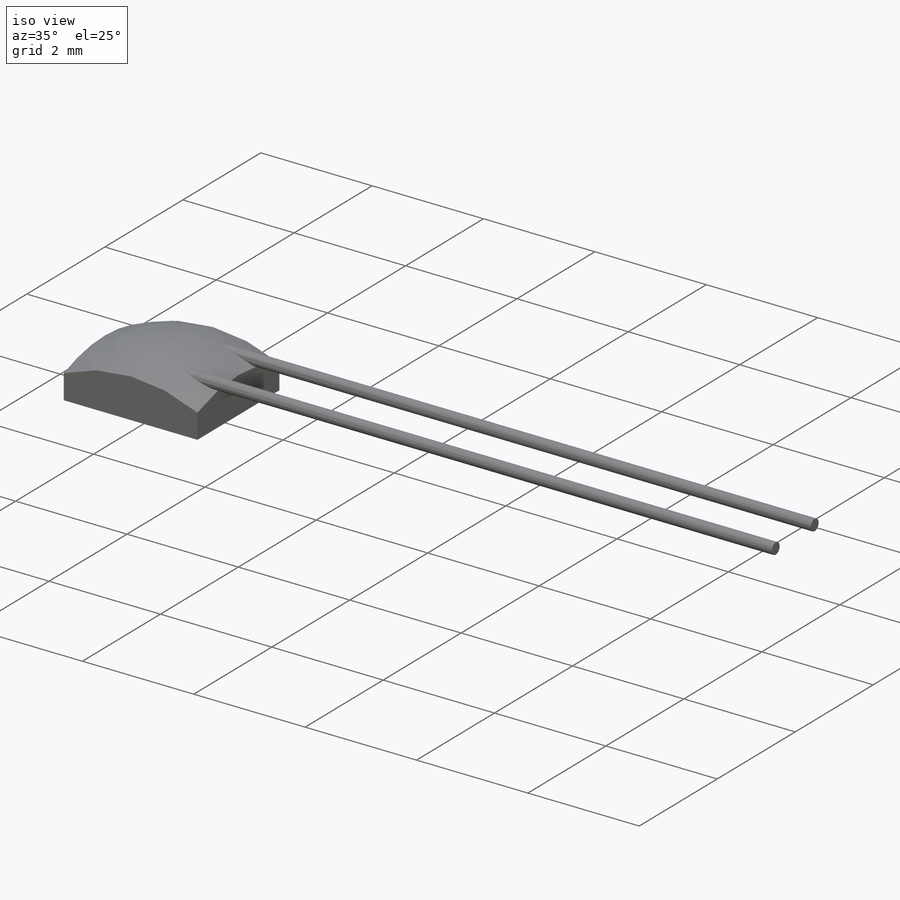
[diagram: iso view]
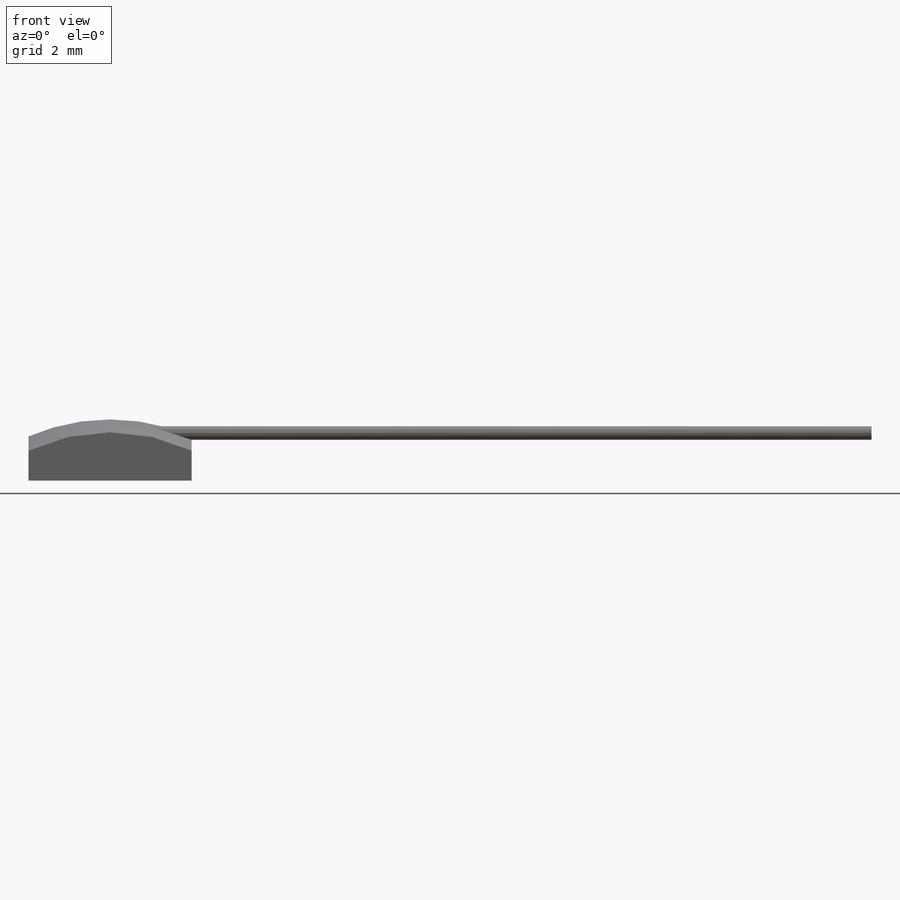
[diagram: front view]
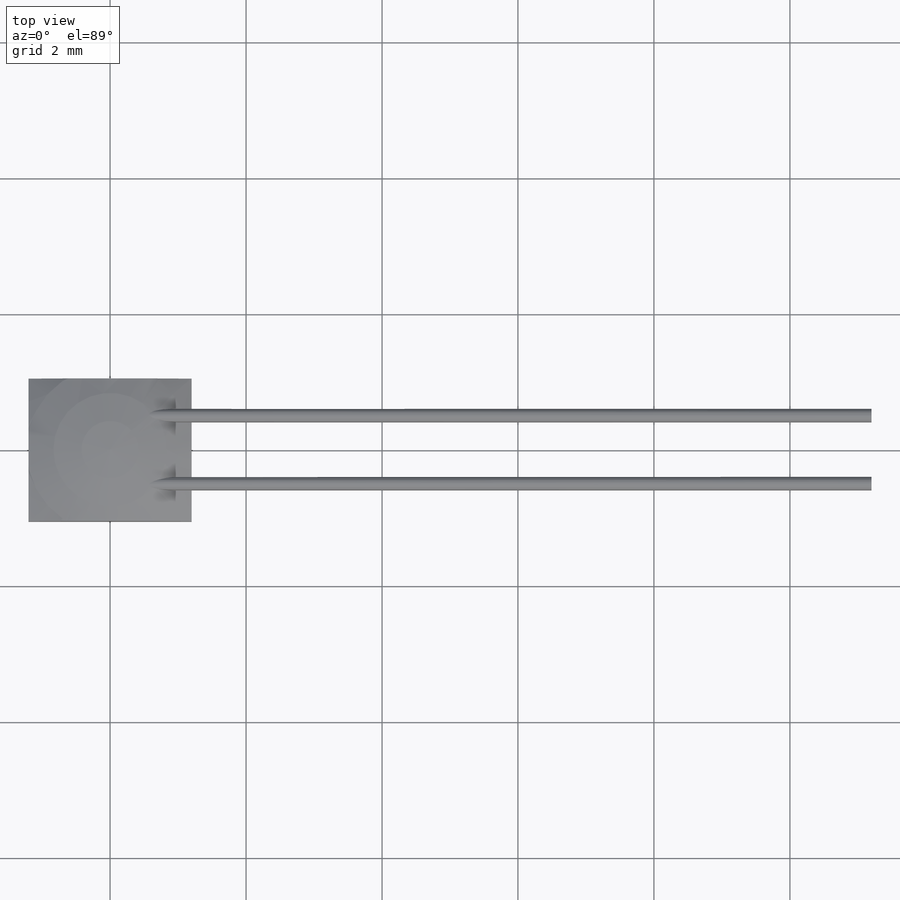
[diagram: top view]
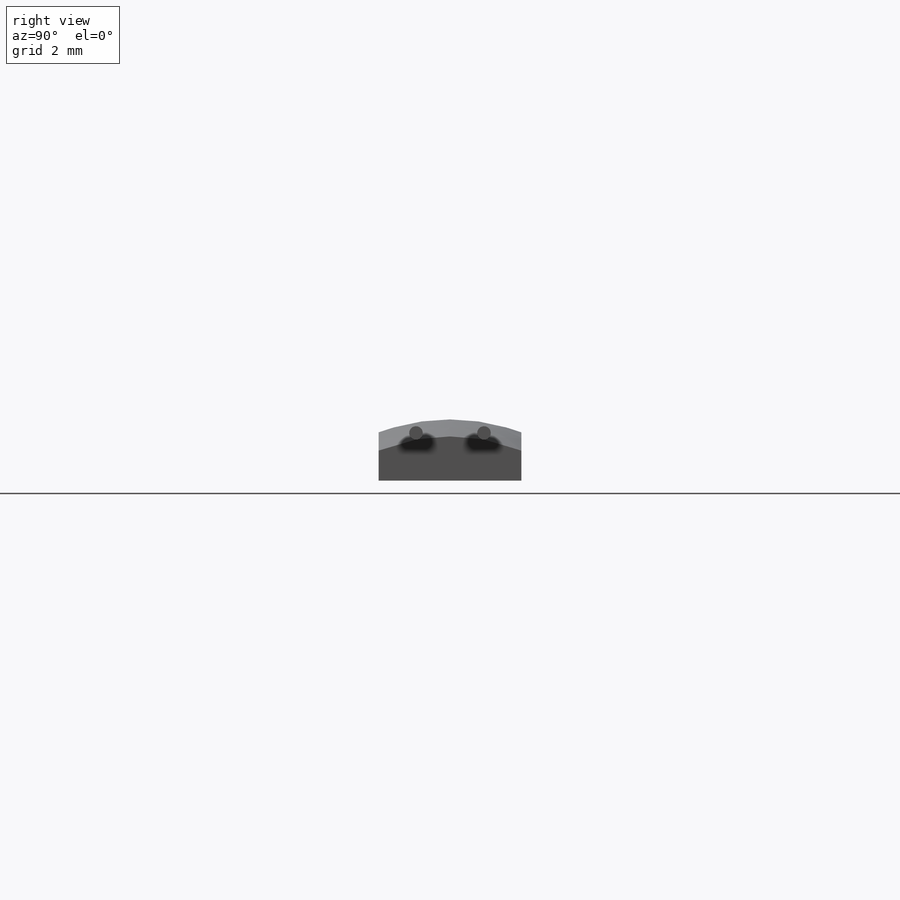
[diagram: right view]
SOLIDWORKS PART (.sldprt)
format: sldprt  version: not decoded by parser v0  size: 207,360 bytes
history: native  units: mm
features: sketch x3, material x1, revolve x1, cut_extrude x1, extrude x1 (+14 scaffold rows collapsed)
feature tree (21):
  scaffold x14  (default folders/planes/origin — collapsed)
  material  "Керамика фарфор"
  sketch  "Эскиз2"  dims[D3=3.0mm D1=0.9mm D2=3.5mm]
  revolve  "Повернуть1"  Angle=360deg
  sketch  "Эскиз3"  dims[D1=2.1mm D2=2.4mm]
  cut_extrude  "Вырез-Вытянуть1"  [1 undecoded]
  sketch  "Эскиз4"  dims[c1.D1=0.2mm c1.D2=0.2mm c1.D3=0.2mm c1.D4=0.2mm c2.D2=1.0mm c2.D3=0.5mm c2.D4=0.7mm]
  extrude  "Бобышка-Вытянуть2"  Depth=10mm
decode coverage: 5 of 6 modeling features carry decoded parameters
note: 1 parameter value undecoded
note: suppression state not decoded; provenance and decode notes live in map.json
